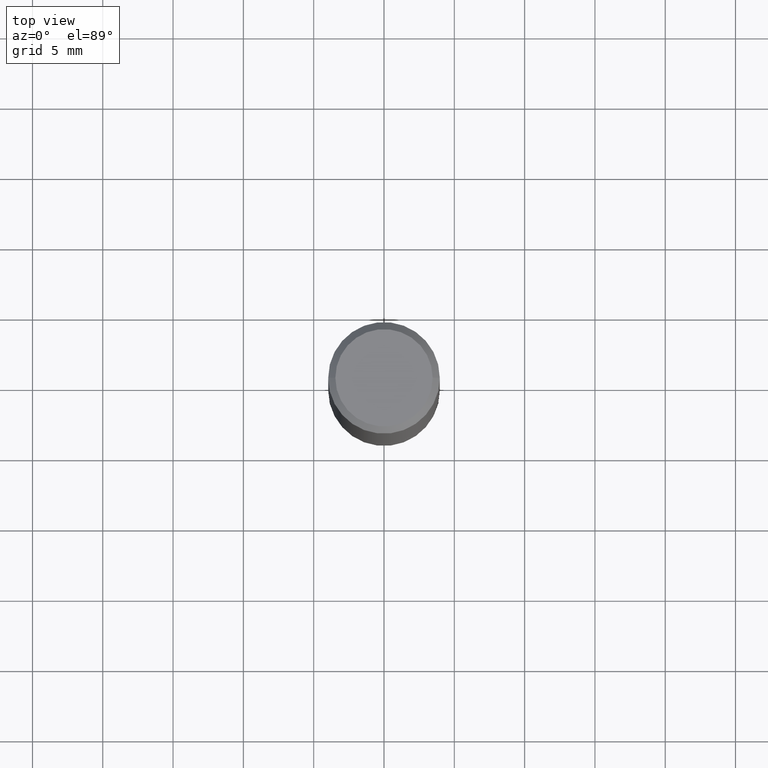
[diagram: clean part render]
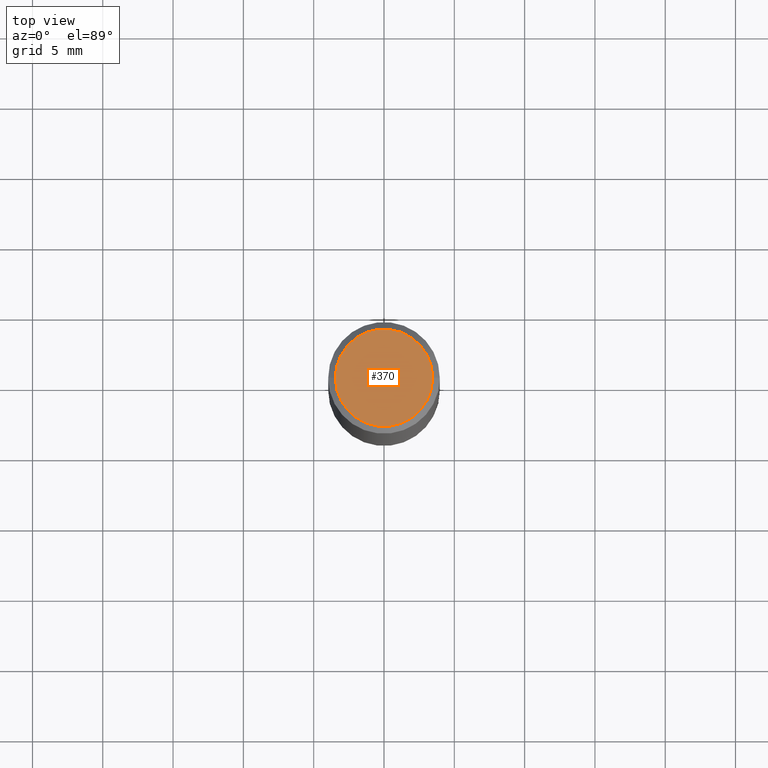
[diagram: same view with one face highlighted and labeled with its STEP entity id]
A machine part, top view. The second image highlights one B-rep face of the part: STEP entity #370.
In plain terms, the highlighted planar face has unit normal (0, -0, -1).
Its self-contained STEP definition (entity closure, byte-faithful):
#42 = AXIS2_PLACEMENT_3D ( 'NONE', #231, #292, #53 ) ;
#49 = ORIENTED_EDGE ( 'NONE', *, *, #373, .T. ) ;
#53 = DIRECTION ( 'NONE',  ( 1.000000000000000000, -6.982962677686266711E-15, 4.876176775795935232E-29 ) ) ;
#62 = CIRCLE ( 'NONE', #179, 0.1362499999999997879 ) ;
#77 = FACE_OUTER_BOUND ( 'NONE', #141, .T. ) ;
#78 = DIRECTION ( 'NONE',  ( -2.445468806185136597E-29, 3.491481338843145583E-15, 1.000000000000000000 ) ) ;
#89 = ORIENTED_EDGE ( 'NONE', *, *, #145, .T. ) ;
#141 = EDGE_LOOP ( 'NONE', ( #89, #49 ) ) ;
#145 = EDGE_CURVE ( 'NONE', #414, #352, #281, .T. ) ;
#179 = AXIS2_PLACEMENT_3D ( 'NONE', #227, #78, #427 ) ;
#227 = CARTESIAN_POINT ( 'NONE',  ( 0.000000000000000000, 0.000000000000000000, 0.000000000000000000 ) ) ;
#231 = CARTESIAN_POINT ( 'NONE',  ( 0.000000000000000000, 0.000000000000000000, 0.000000000000000000 ) ) ;
#236 = AXIS2_PLACEMENT_3D ( 'NONE', #322, #257, #392 ) ;
#257 = DIRECTION ( 'NONE',  ( 2.438088387897960049E-29, -3.491481338843145188E-15, -1.000000000000000000 ) ) ;
#281 = CIRCLE ( 'NONE', #42, 0.1362499999999997879 ) ;
#292 = DIRECTION ( 'NONE',  ( -2.445468806185136597E-29, 3.491481338843145583E-15, 1.000000000000000000 ) ) ;
#315 = CARTESIAN_POINT ( 'NONE',  ( 0.1362499999999997879, -1.038262645562516547E-15, 6.957025900226685266E-30 ) ) ;
#318 = CARTESIAN_POINT ( 'NONE',  ( -0.1362499999999997879, 9.863434782231836346E-16, -6.775751096333128673E-30 ) ) ;
#322 = CARTESIAN_POINT ( 'NONE',  ( 9.514286648347523799E-16, 0.1362499999999997879, -4.757143324173778663E-16 ) ) ;
#327 = PLANE ( 'NONE',  #236 ) ;
#352 = VERTEX_POINT ( 'NONE', #315 ) ;
#370 = ADVANCED_FACE ( 'NONE', ( #77 ), #327, .F. ) ;
#373 = EDGE_CURVE ( 'NONE', #352, #414, #62, .T. ) ;
#392 = DIRECTION ( 'NONE',  ( -1.000000000000000000, 6.982962677686265922E-15, -4.876176775795935793E-29 ) ) ;
#414 = VERTEX_POINT ( 'NONE', #318 ) ;
#427 = DIRECTION ( 'NONE',  ( 1.000000000000000000, -6.982962677686266711E-15, 4.876176775795935232E-29 ) ) ;